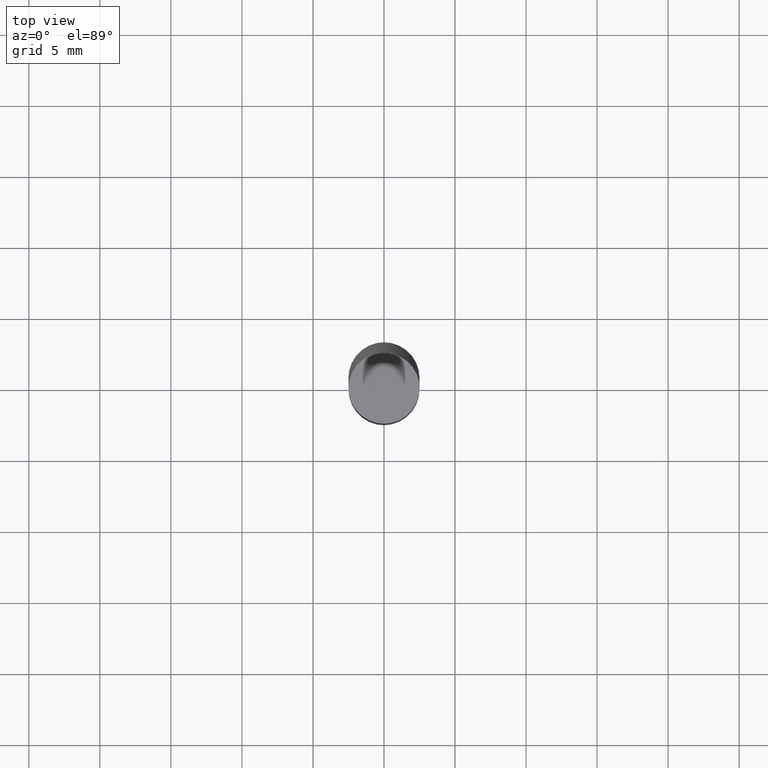
[diagram: clean part render]
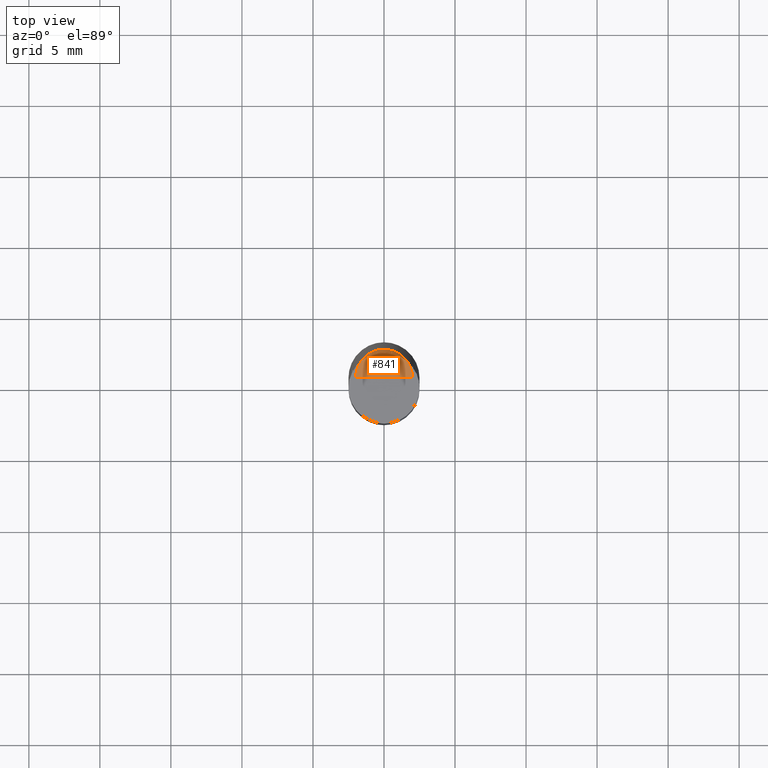
[diagram: same view with one face highlighted and labeled with its STEP entity id]
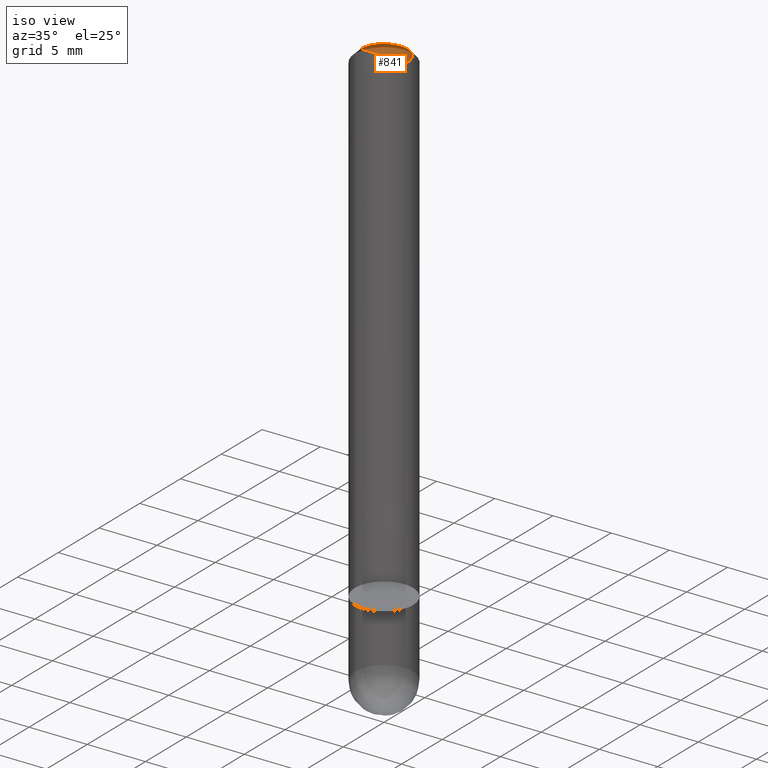
[diagram: same view with one face highlighted and labeled with its STEP entity id]
A machine part, top view. The second image highlights one B-rep face of the part: STEP entity #841.
A second angle (iso view) of the same face is appended — the face is thin or edge-on in the first view.
In plain terms, the highlighted face is a freeform B-spline surface patch.
Its self-contained STEP definition (entity closure, byte-faithful):
#620=CARTESIAN_POINT('',(2.0,0.0,37.0));
#621=CARTESIAN_POINT('',(2.0,2.0,37.0));
#622=CARTESIAN_POINT('',(0.0,2.0,37.0));
#623=CARTESIAN_POINT('',(-2.0,2.0,37.0));
#624=CARTESIAN_POINT('',(-2.0,0.0,37.0));
#625=CARTESIAN_POINT('',(0.0,0.0,37.0));
#826=(
BOUNDED_SURFACE()
B_SPLINE_SURFACE(1,2,(
(#620,#621,#622,#623,#624),
(#625,#625,#625,#625,#625)
), .UNSPECIFIED.,.F.,.F.,.F.)
B_SPLINE_SURFACE_WITH_KNOTS((2,2),(3,2,3),(
0.0,1.0),(
0.0,0.5,1.0), .UNSPECIFIED.)
GEOMETRIC_REPRESENTATION_ITEM()
RATIONAL_B_SPLINE_SURFACE(((1.0,0.707106781187,1.0,0.707106781187,1.0),
(1.0,0.707106781187,1.0,0.707106781187,1.0)
))
REPRESENTATION_ITEM('')
SURFACE()
);
#827=(
BOUNDED_CURVE()
B_SPLINE_CURVE(2,(#624,#623,#622,#621,#620),.UNSPECIFIED.,.F.,.F.)
B_SPLINE_CURVE_WITH_KNOTS((3,2,3),
(0.0,0.5,1.0),.UNSPECIFIED.)
CURVE()
GEOMETRIC_REPRESENTATION_ITEM()
RATIONAL_B_SPLINE_CURVE((1.0,0.707106781187,1.0,0.707106781187,1.0))
REPRESENTATION_ITEM('')
);
#828=(
BOUNDED_CURVE()
B_SPLINE_CURVE(1,(#620,#625),.UNSPECIFIED.,.F.,.F.)
B_SPLINE_CURVE_WITH_KNOTS((2,2),
(0.0,1.0),.UNSPECIFIED.)
CURVE()
GEOMETRIC_REPRESENTATION_ITEM()
RATIONAL_B_SPLINE_CURVE((1.0,1.0))
REPRESENTATION_ITEM('')
);
#829=(
BOUNDED_CURVE()
B_SPLINE_CURVE(1,(#625,#624),.UNSPECIFIED.,.F.,.F.)
B_SPLINE_CURVE_WITH_KNOTS((2,2),
(0.0,1.0),.UNSPECIFIED.)
CURVE()
GEOMETRIC_REPRESENTATION_ITEM()
RATIONAL_B_SPLINE_CURVE((1.0,1.0))
REPRESENTATION_ITEM('')
);
#830=VERTEX_POINT('',#620);
#831=VERTEX_POINT('',#624);
#832=VERTEX_POINT('',#625);
#833=EDGE_CURVE('',#831,#830,#827,.T.);
#834=EDGE_CURVE('',#830,#832,#828,.T.);
#835=EDGE_CURVE('',#832,#831,#829,.T.);
#836=ORIENTED_EDGE('',*,*,#833,.T.);
#837=ORIENTED_EDGE('',*,*,#834,.T.);
#838=ORIENTED_EDGE('',*,*,#835,.T.);
#839=EDGE_LOOP('',(#836,#837,#838));
#840=FACE_OUTER_BOUND('',#839,.T.);
#841=ADVANCED_FACE('',(#840),#826,.T.);